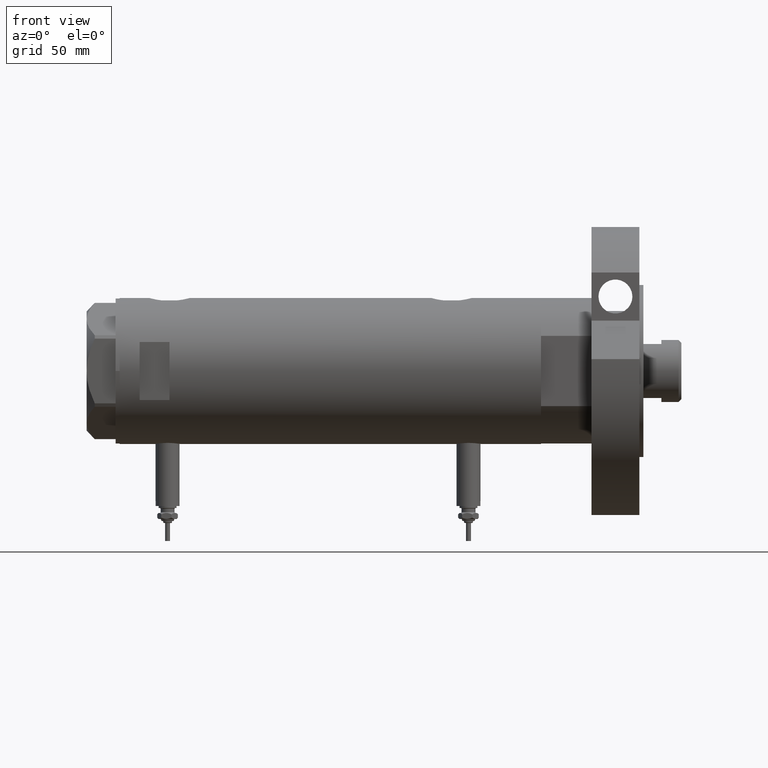
[diagram: clean part render]
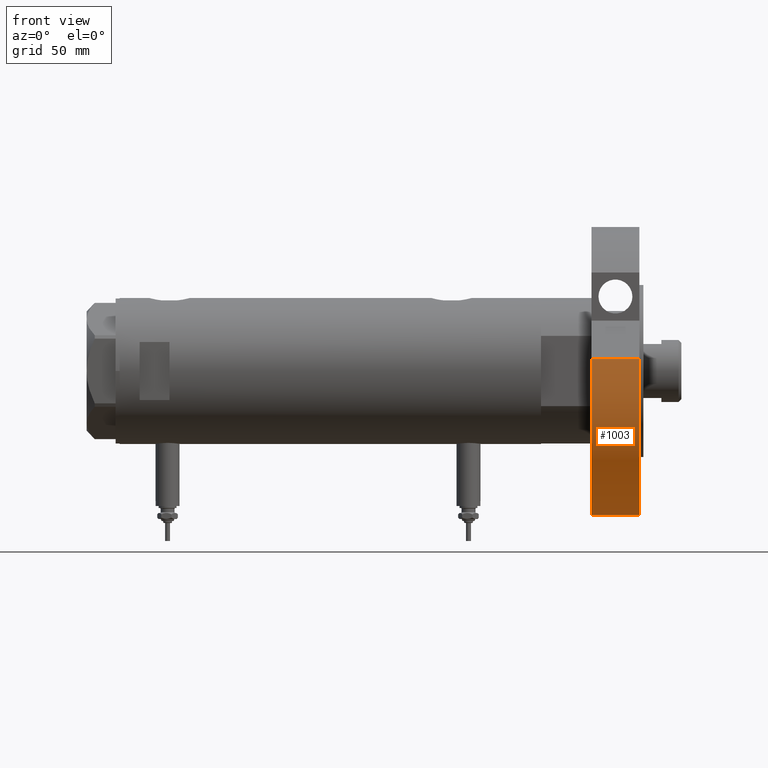
[diagram: same view with one face highlighted and labeled with its STEP entity id]
A machine part, front view. The second image highlights one B-rep face of the part: STEP entity #1003.
In plain terms, the highlighted cylindrical surface (partial cylindrical patch) has radius 72 mm, axis along (-1, -0, 0).
Its self-contained STEP definition (entity closure, byte-faithful):
#10 = CARTESIAN_POINT ( 'NONE',  ( 0.000000000000000000, 0.000000000000000000, 24.00000000000000000 ) ) ;
#142 = ORIENTED_EDGE ( 'NONE', *, *, #2268, .T. ) ;
#1003 = ADVANCED_FACE ( 'NONE', ( #6918 ), #1752, .T. ) ;
#1334 = CIRCLE ( 'NONE', #5849, 72.00000000000000000 ) ;
#1335 = CARTESIAN_POINT ( 'NONE',  ( 5.949394898342027282, 71.75377830012563152, 0.000000000000000000 ) ) ;
#1752 = CYLINDRICAL_SURFACE ( 'NONE', #4604, 72.00000000000000000 ) ;
#1763 = DIRECTION ( 'NONE',  ( -0.000000000000000000, -0.000000000000000000, -1.000000000000000000 ) ) ;
#1887 = EDGE_CURVE ( 'NONE', #6554, #4028, #2740, .T. ) ;
#2236 = VERTEX_POINT ( 'NONE', #6920 ) ;
#2245 = DIRECTION ( 'NONE',  ( 0.000000000000000000, 0.000000000000000000, 1.000000000000000000 ) ) ;
#2268 = EDGE_CURVE ( 'NONE', #2236, #4028, #1334, .T. ) ;
#2365 = DIRECTION ( 'NONE',  ( -1.000000000000000000, 0.000000000000000000, 0.000000000000000000 ) ) ;
#2636 = EDGE_CURVE ( 'NONE', #2236, #4090, #3174, .T. ) ;
#2691 = CARTESIAN_POINT ( 'NONE',  ( -72.00000000000000000, 0.000000000000000000, 24.00000000000000000 ) ) ;
#2740 = LINE ( 'NONE', #5062, #3162 ) ;
#2924 = ORIENTED_EDGE ( 'NONE', *, *, #4351, .F. ) ;
#3069 = CIRCLE ( 'NONE', #4388, 72.00000000000000000 ) ;
#3162 = VECTOR ( 'NONE', #1763, 1000.000000000000000 ) ;
#3174 = LINE ( 'NONE', #1335, #7087 ) ;
#3338 = ORIENTED_EDGE ( 'NONE', *, *, #2636, .F. ) ;
#3385 = DIRECTION ( 'NONE',  ( 1.000000000000000000, 0.000000000000000000, 0.000000000000000000 ) ) ;
#3393 = DIRECTION ( 'NONE',  ( 0.000000000000000000, 0.000000000000000000, 1.000000000000000000 ) ) ;
#3978 = EDGE_LOOP ( 'NONE', ( #6081, #2924, #3338, #142 ) ) ;
#4028 = VERTEX_POINT ( 'NONE', #5220 ) ;
#4090 = VERTEX_POINT ( 'NONE', #7071 ) ;
#4351 = EDGE_CURVE ( 'NONE', #4090, #6554, #3069, .T. ) ;
#4388 = AXIS2_PLACEMENT_3D ( 'NONE', #6776, #2245, #3385 ) ;
#4604 = AXIS2_PLACEMENT_3D ( 'NONE', #10, #6335, #2365 ) ;
#4611 = CARTESIAN_POINT ( 'NONE',  ( 0.000000000000000000, 0.000000000000000000, 0.000000000000000000 ) ) ;
#5062 = CARTESIAN_POINT ( 'NONE',  ( -72.00000000000000000, 0.000000000000000000, 24.00000000000000000 ) ) ;
#5218 = DIRECTION ( 'NONE',  ( 1.000000000000000000, 0.000000000000000000, 0.000000000000000000 ) ) ;
#5220 = CARTESIAN_POINT ( 'NONE',  ( -72.00000000000000000, 0.000000000000000000, 0.000000000000000000 ) ) ;
#5455 = DIRECTION ( 'NONE',  ( -0.000000000000000000, -0.000000000000000000, 1.000000000000000000 ) ) ;
#5849 = AXIS2_PLACEMENT_3D ( 'NONE', #4611, #3393, #5218 ) ;
#6081 = ORIENTED_EDGE ( 'NONE', *, *, #1887, .F. ) ;
#6335 = DIRECTION ( 'NONE',  ( -0.000000000000000000, -0.000000000000000000, -1.000000000000000000 ) ) ;
#6554 = VERTEX_POINT ( 'NONE', #2691 ) ;
#6776 = CARTESIAN_POINT ( 'NONE',  ( 0.000000000000000000, 0.000000000000000000, 24.00000000000000000 ) ) ;
#6918 = FACE_OUTER_BOUND ( 'NONE', #3978, .T. ) ;
#6920 = CARTESIAN_POINT ( 'NONE',  ( 5.949394898342027282, 71.75377830012563152, 0.000000000000000000 ) ) ;
#7071 = CARTESIAN_POINT ( 'NONE',  ( 5.949394898342027282, 71.75377830012563152, 24.00000000000000000 ) ) ;
#7087 = VECTOR ( 'NONE', #5455, 1000.000000000000000 ) ;